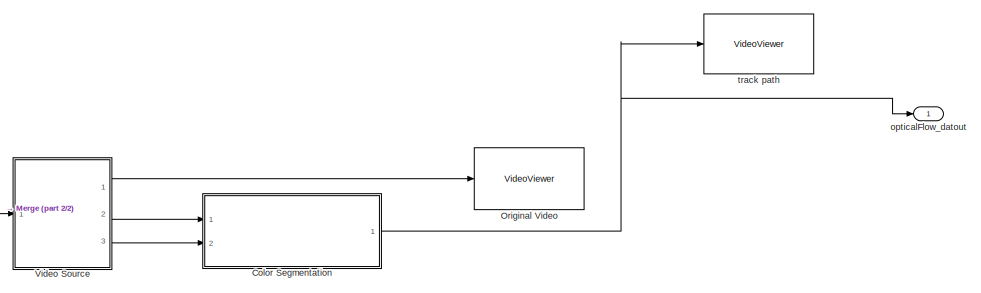
[diagram: root canvas - part 1/2, right side, full height]
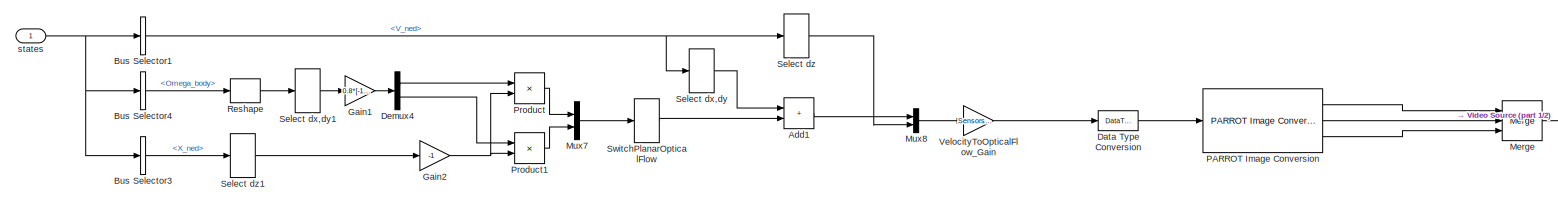
[diagram: root canvas - part 2/2, middle left region]
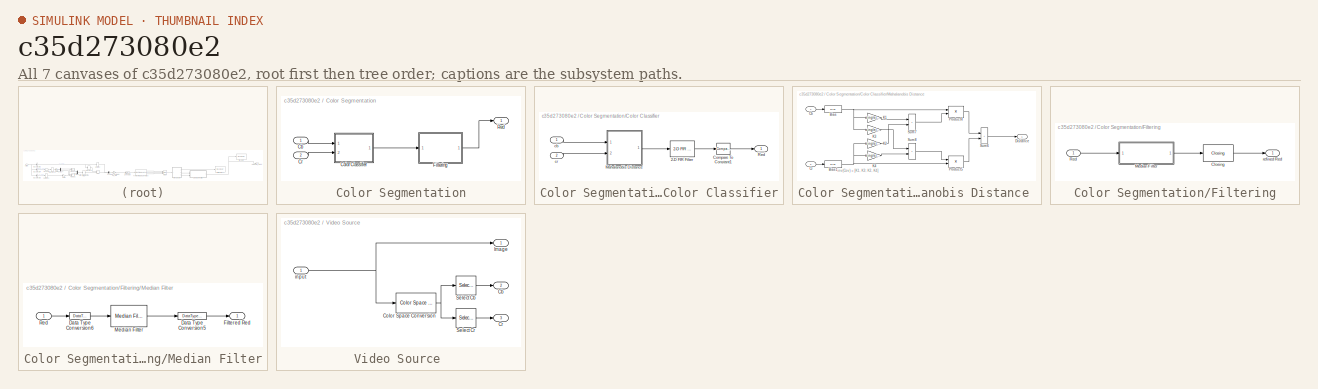
[diagram: thumbnail index - all 7 canvases of the model, root first then tree order]
MODEL slx_c35d273080e2
KIND model
CONFIG AbsTol = auto
CONFIG EnableMultiTasking = off
CONFIG FixedStep = auto
CONFIG MaxStep = auto
CONFIG MinStep = auto
CONFIG RelTol = 1e-3
CONFIG SampleTimeConstraint = Unconstrained
CONFIG Solver = VariableStepAuto
CONFIG SolverName = VariableStepAuto
CONFIG StartTime = 0.0
CONFIG StopTime = 10.0
BLOCK [Sum] Add1
  IconShape = rectangular
  Ports = [2, 1]
BLOCK [BusSelector] Bus Selector1
  OutputSignals = V_ned
  Ports = [1, 1]
BLOCK [BusSelector] Bus Selector3
  OutputSignals = X_ned
  Ports = [1, 1]
BLOCK [BusSelector] Bus Selector4
  OutputSignals = Omega_body
  Ports = [1, 1]
BLOCK [SubSystem] Color Segmentation
  Ports = [2, 1]
  RequestExecContextInheritance = off
BLOCK [Inport] Color Segmentation/Cb
BLOCK [SubSystem] Color Segmentation/Color Classifier
  Ports = [2, 1]
  RequestExecContextInheritance = off
BLOCK [Reference] Color Segmentation/Color Classifier/2-D FIR Filter  REF=visionfilter/2-D FIR Filter
  Ports = [1, 1]
  SourceBlock = visionfilter/2-D FIR Filter
  SourceProductBaseCode = VP
  SourceType = 2-D FIR Filter
BLOCK [Reference] Color Segmentation/Color Classifier/Compare To Constant1  REF=simulink/Logic and Bit
Operations/Compare
To Constant
  Ports = [1, 1]
  SourceBlock = simulink/Logic and Bit\nOperations/Compare\nTo Constant
  SourceProductBaseCode = SL
  SourceType = Compare To Constant
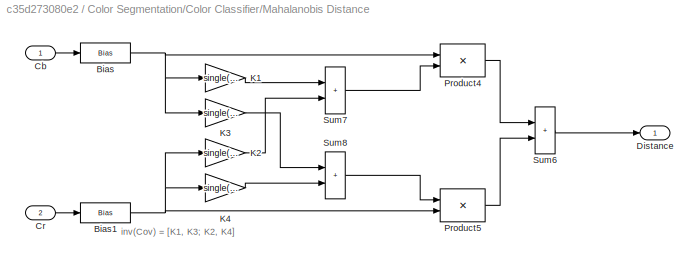
BLOCK [SubSystem] Color Segmentation/Color Classifier/Mahalanobis Distance 
  Ports = [2, 1]
  RequestExecContextInheritance = off
BLOCK [Bias] Color Segmentation/Color Classifier/Mahalanobis Distance /Bias
  Bias = -single(90/255)
  SaturateOnIntegerOverflow = off
BLOCK [Bias] Color Segmentation/Color Classifier/Mahalanobis Distance /Bias1
  Bias = -single(240/255)
  SaturateOnIntegerOverflow = off
BLOCK [Inport] Color Segmentation/Color Classifier/Mahalanobis Distance /Cb
BLOCK [Inport] Color Segmentation/Color Classifier/Mahalanobis Distance /Cr
  Port = 2
BLOCK [Outport] Color Segmentation/Color Classifier/Mahalanobis Distance /Distance
BLOCK [Gain] Color Segmentation/Color Classifier/Mahalanobis Distance /K1
  Gain = single(1.8328501e+03)
  OutDataTypeStr = Inherit: Same as input
  ParamDataTypeStr = Inherit: Same as input
  SaturateOnIntegerOverflow = on
BLOCK [Gain] Color Segmentation/Color Classifier/Mahalanobis Distance /K2
  Gain = single(2.2506719e+03)
  OutDataTypeStr = Inherit: Same as input
  ParamDataTypeStr = Inherit: Same as input
  SaturateOnIntegerOverflow = on
BLOCK [Gain] Color Segmentation/Color Classifier/Mahalanobis Distance /K3
  Gain = single(2.2506719e+03)
  OutDataTypeStr = Inherit: Same as input
  ParamDataTypeStr = Inherit: Same as input
  SaturateOnIntegerOverflow = on
BLOCK [Gain] Color Segmentation/Color Classifier/Mahalanobis Distance /K4
  Gain = single(6.8658257e+03)
  OutDataTypeStr = Inherit: Same as input
  ParamDataTypeStr = Inherit: Same as input
  SaturateOnIntegerOverflow = on
BLOCK [Product] Color Segmentation/Color Classifier/Mahalanobis Distance /Product4
  InputSameDT = on
  OutDataTypeStr = Inherit: Same as first input
  Ports = [2, 1]
  SaturateOnIntegerOverflow = on
BLOCK [Product] Color Segmentation/Color Classifier/Mahalanobis Distance /Product5
  InputSameDT = on
  OutDataTypeStr = Inherit: Same as first input
  Ports = [2, 1]
  SaturateOnIntegerOverflow = on
BLOCK [Sum] Color Segmentation/Color Classifier/Mahalanobis Distance /Sum6
  IconShape = rectangular
  InputSameDT = on
  OutDataTypeStr = Inherit: Same as first input
  Ports = [2, 1]
  SaturateOnIntegerOverflow = on
BLOCK [Sum] Color Segmentation/Color Classifier/Mahalanobis Distance /Sum7
  IconShape = rectangular
  InputSameDT = on
  OutDataTypeStr = Inherit: Same as first input
  Ports = [2, 1]
  SaturateOnIntegerOverflow = on
BLOCK [Sum] Color Segmentation/Color Classifier/Mahalanobis Distance /Sum8
  IconShape = rectangular
  InputSameDT = on
  OutDataTypeStr = Inherit: Same as first input
  Ports = [2, 1]
  SaturateOnIntegerOverflow = on
BLOCK [Outport] Color Segmentation/Color Classifier/Red 
BLOCK [Inport] Color Segmentation/Color Classifier/cb
BLOCK [Inport] Color Segmentation/Color Classifier/cr
  Port = 2
BLOCK [Inport] Color Segmentation/Cr
  Port = 2
BLOCK [SubSystem] Color Segmentation/Filtering
  Ports = [1, 1]
  RequestExecContextInheritance = off
BLOCK [Reference] Color Segmentation/Filtering/Closing  REF=visionmorphops/Closing
  Ports = [1, 1]
  SourceBlock = visionmorphops/Closing
  SourceProductBaseCode = VP
  SourceType = Closing
BLOCK [SubSystem] Color Segmentation/Filtering/Median Filter
  Ports = [1, 1]
  RequestExecContextInheritance = off
BLOCK [DataTypeConversion] Color Segmentation/Filtering/Median Filter/Data Type Conversion5
  OutDataTypeStr = boolean
BLOCK [DataTypeConversion] Color Segmentation/Filtering/Median Filter/Data Type Conversion6
  OutDataTypeStr = single
BLOCK [Outport] Color Segmentation/Filtering/Median Filter/Filtered Red
BLOCK [Reference] Color Segmentation/Filtering/Median Filter/Median Filter  REF=visionanalysis/Median Filter
  Ports = [1, 1]
  SourceBlock = visionanalysis/Median Filter
  SourceProductBaseCode = VP
  SourceType = Median Filter
BLOCK [Inport] Color Segmentation/Filtering/Median Filter/Red
BLOCK [Inport] Color Segmentation/Filtering/Red
BLOCK [Outport] Color Segmentation/Filtering/refined Red
BLOCK [Outport] Color Segmentation/Red
BLOCK [DataTypeConversion] Data Type Conversion
  OutDataTypeStr = single
  RndMeth = Floor
  SaturateOnIntegerOverflow = off
BLOCK [Demux] Demux4
  Outputs = 2
  Ports = [1, 2]
BLOCK [Gain] Gain1
  Gain = 0.8*[-1,1]
BLOCK [Gain] Gain2
  Gain = -1
BLOCK [Merge] Merge
  Inputs = 3
  Ports = [3, 1]
BLOCK [Mux] Mux7
  DisplayOption = bar
  Inputs = 2
  Ports = [2, 1]
BLOCK [Mux] Mux8
  DisplayOption = bar
  Inputs = 2
  Ports = [2, 1]
BLOCK [VideoViewer] Original Video
  FigPos = [685 765 681 682]
  Ports = [1]
  ScopeSpecificationString = vipscopes.VideoViewerScopeCfg('CurrentConfiguration', extmgr.ConfigurationSet(extmgr.Configuration('Core','General UI',true,'ShowPlaybackToolbar',false,'ShowSaveConfigSet',true,'FigureProperties',[],'MessageLogAutoOpenMode','for warn/fail messages','FigureColor',[0.941176470588235 0.941176470588235 0.941176470588235]),extmgr.Configuration('Core','Source UI',true,'PlaybackToolbar',true),extmgr.Conf...<+544ch>
  colormapValue = gray(256)
  trueSizedOnce = on
BLOCK [Reference] PARROT Image Conversion  REF=parrotlib/PARROT Image Conversion
  Ports = [1, 3]
  SourceBlock = parrotlib/PARROT Image Conversion
  SourceProductBaseCode = MINIDRONES
  SourceType = parrot.ImageProcess
  Tag = IP_FORMAT
BLOCK [Product] Product
  Ports = [2, 1]
BLOCK [Product] Product1
  Ports = [2, 1]
BLOCK [Reshape] Reshape
  Ports = [1, 1]
BLOCK [Selector] Select dx,dy
  IndexOptions = Index vector (dialog)
  Indices = [1 2]
  InputPortWidth = 3
  OutputSizes = 1
  Ports = [1, 1]
BLOCK [Selector] Select dx,dy1
  IndexOptions = Index vector (dialog)
  Indices = [1 2]
  InputPortWidth = 3
  OutputSizes = 1
  Ports = [1, 1]
BLOCK [Selector] Select dz
  IndexOptions = Index vector (dialog)
  Indices = 3
  InputPortWidth = 3
  OutputSizes = 1
  Ports = [1, 1]
BLOCK [Selector] Select dz1
  IndexOptions = Index vector (dialog)
  Indices = 3
  InputPortWidth = 3
  OutputSizes = 1
  Ports = [1, 1]
BLOCK [Selector] SwitchPlanarOpticalFlow
  IndexOptions = Index vector (dialog)
  Indices = [2 1]
  InputPortWidth = 2
  OutputSizes = 1
  Ports = [1, 1]
BLOCK [Gain] VelocityToOpticalFlow_Gain
  Gain = Sensors.velocityToOpticalFlowGain
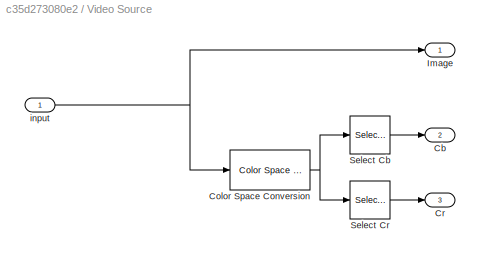
BLOCK [SubSystem] Video Source 
  Ports = [1, 3]
  RequestExecContextInheritance = off
BLOCK [Outport] Video Source /Cb
  Port = 2
BLOCK [Reference] Video Source /Color Space Conversion  REF=visionconversions/Color Space
 Conversion
  Ports = [1, 1]
  SourceBlock = visionconversions/Color Space\n Conversion
  SourceProductBaseCode = VP
  SourceType = Color Space Conversion
BLOCK [Outport] Video Source /Cr
  Port = 3
BLOCK [Outport] Video Source /Image
BLOCK [Selector] Video Source /Select Cb
  IndexOptions = Select all,Select all,Index vector (dialog)
  Indices = [1 3],1,2
  InputPortWidth = 3
  NumberOfDimensions = 3
  OutputSizes = 1,1,1
  Ports = [1, 1]
BLOCK [Selector] Video Source /Select Cr
  IndexOptions = Select all,Select all,Index vector (dialog)
  Indices = [1 3],1,3
  InputPortWidth = 3
  NumberOfDimensions = 3
  OutputSizes = 1,1,1
  Ports = [1, 1]
BLOCK [Inport] Video Source /input 
BLOCK [Outport] opticalFlow_datout
  VectorParamsAs1DForOutWhenUnconnected = off
BLOCK [Inport] states
  NameLocation = top
BLOCK [VideoViewer] track path 
  FigPos = [1 766 683 691]
  Ports = [1]
  ScopeSpecificationString = vipscopes.VideoViewerScopeCfg('CurrentConfiguration', extmgr.ConfigurationSet(extmgr.Configuration('Core','General UI',true,'ShowPlaybackToolbar',false,'ShowSaveConfigSet',true,'FigureProperties',[],'MessageLogAutoOpenMode','for warn/fail messages','FigureColor',[0.941176470588235 0.941176470588235 0.941176470588235]),extmgr.Configuration('Core','Source UI',true,'PlaybackToolbar',true),extmgr.Conf...<+542ch>
  colormapValue = gray(256)
  trueSizedOnce = on
ANNOTATION Color Segmentation/Color Classifier/Mahalanobis Distance : inv(Cov) = [K1, K3; K2, K4]
LINE Add1:1 -> Mux8:1
NET Bus Selector1:1 -> Select dx,dy:1, Select dz:1
LINE Bus Selector3:1 -> Select dz1:1
LINE Bus Selector4:1 -> Reshape:1
LINE Color Segmentation/Cb:1 -> Color Segmentation/Color Classifier:1
LINE Color Segmentation/Color Classifier/2-D FIR Filter:1 -> Color Segmentation/Color Classifier/Compare To Constant1:1
LINE Color Segmentation/Color Classifier/Compare To Constant1:1 -> Color Segmentation/Color Classifier/Red :1
NET Color Segmentation/Color Classifier/Mahalanobis Distance /Bias1:1 -> Color Segmentation/Color Classifier/Mahalanobis Distance /K2:1, Color Segmentation/Color Classifier/Mahalanobis Distance /K4:1, Color Segmentation/Color Classifier/Mahalanobis Distance /Product5:2
NET Color Segmentation/Color Classifier/Mahalanobis Distance /Bias:1 -> Color Segmentation/Color Classifier/Mahalanobis Distance /K1:1, Color Segmentation/Color Classifier/Mahalanobis Distance /K3:1, Color Segmentation/Color Classifier/Mahalanobis Distance /Product4:1
LINE Color Segmentation/Color Classifier/Mahalanobis Distance /Cb:1 -> Color Segmentation/Color Classifier/Mahalanobis Distance /Bias:1
LINE Color Segmentation/Color Classifier/Mahalanobis Distance /Cr:1 -> Color Segmentation/Color Classifier/Mahalanobis Distance /Bias1:1
LINE Color Segmentation/Color Classifier/Mahalanobis Distance /K1:1 -> Color Segmentation/Color Classifier/Mahalanobis Distance /Sum7:1
LINE Color Segmentation/Color Classifier/Mahalanobis Distance /K2:1 -> Color Segmentation/Color Classifier/Mahalanobis Distance /Sum7:2
LINE Color Segmentation/Color Classifier/Mahalanobis Distance /K3:1 -> Color Segmentation/Color Classifier/Mahalanobis Distance /Sum8:1
LINE Color Segmentation/Color Classifier/Mahalanobis Distance /K4:1 -> Color Segmentation/Color Classifier/Mahalanobis Distance /Sum8:2
LINE Color Segmentation/Color Classifier/Mahalanobis Distance /Product4:1 -> Color Segmentation/Color Classifier/Mahalanobis Distance /Sum6:1
LINE Color Segmentation/Color Classifier/Mahalanobis Distance /Product5:1 -> Color Segmentation/Color Classifier/Mahalanobis Distance /Sum6:2
LINE Color Segmentation/Color Classifier/Mahalanobis Distance /Sum6:1 -> Color Segmentation/Color Classifier/Mahalanobis Distance /Distance:1
LINE Color Segmentation/Color Classifier/Mahalanobis Distance /Sum7:1 -> Color Segmentation/Color Classifier/Mahalanobis Distance /Product4:2
LINE Color Segmentation/Color Classifier/Mahalanobis Distance /Sum8:1 -> Color Segmentation/Color Classifier/Mahalanobis Distance /Product5:1
LINE Color Segmentation/Color Classifier/Mahalanobis Distance :1 -> Color Segmentation/Color Classifier/2-D FIR Filter:1
LINE Color Segmentation/Color Classifier/cb:1 -> Color Segmentation/Color Classifier/Mahalanobis Distance :1
LINE Color Segmentation/Color Classifier/cr:1 -> Color Segmentation/Color Classifier/Mahalanobis Distance :2
LINE Color Segmentation/Color Classifier:1 -> Color Segmentation/Filtering:1
LINE Color Segmentation/Cr:1 -> Color Segmentation/Color Classifier:2
LINE Color Segmentation/Filtering/Closing:1 -> Color Segmentation/Filtering/refined Red:1
LINE Color Segmentation/Filtering/Median Filter/Data Type Conversion5:1 -> Color Segmentation/Filtering/Median Filter/Filtered Red:1
LINE Color Segmentation/Filtering/Median Filter/Data Type Conversion6:1 -> Color Segmentation/Filtering/Median Filter/Median Filter:1
LINE Color Segmentation/Filtering/Median Filter/Median Filter:1 -> Color Segmentation/Filtering/Median Filter/Data Type Conversion5:1
LINE Color Segmentation/Filtering/Median Filter/Red:1 -> Color Segmentation/Filtering/Median Filter/Data Type Conversion6:1
LINE Color Segmentation/Filtering/Median Filter:1 -> Color Segmentation/Filtering/Closing:1
LINE Color Segmentation/Filtering/Red:1 -> Color Segmentation/Filtering/Median Filter:1
LINE Color Segmentation/Filtering:1 -> Color Segmentation/Red:1
NET Color Segmentation:1 -> opticalFlow_datout:1, track path :1
LINE Data Type Conversion:1 -> PARROT Image Conversion:1
LINE Demux4:1 -> Product:1
LINE Demux4:2 -> Product1:1
LINE Gain1:1 -> Demux4:1
NET Gain2:1 -> Product1:2, Product:2
LINE Merge:1 -> Video Source :1
LINE Mux7:1 -> SwitchPlanarOpticalFlow:1
LINE Mux8:1 -> VelocityToOpticalFlow_Gain:1
LINE PARROT Image Conversion:1 -> Merge:1
LINE PARROT Image Conversion:2 -> Merge:2
LINE PARROT Image Conversion:3 -> Merge:3
LINE Product1:1 -> Mux7:2
LINE Product:1 -> Mux7:1
LINE Reshape:1 -> Select dx,dy1:1
LINE Select dx,dy1:1 -> Gain1:1
LINE Select dx,dy:1 -> Add1:1
LINE Select dz1:1 -> Gain2:1
LINE Select dz:1 -> Mux8:2
LINE SwitchPlanarOpticalFlow:1 -> Add1:2
LINE VelocityToOpticalFlow_Gain:1 -> Data Type Conversion:1
NET Video Source /Color Space Conversion:1 -> Video Source /Select Cb:1, Video Source /Select Cr:1
LINE Video Source /Select Cb:1 -> Video Source /Cb:1
LINE Video Source /Select Cr:1 -> Video Source /Cr:1
NET Video Source /input :1 -> Video Source /Color Space Conversion:1, Video Source /Image:1
LINE Video Source :1 -> Original Video:1
LINE Video Source :2 -> Color Segmentation:1
LINE Video Source :3 -> Color Segmentation:2
NET states:1 -> Bus Selector1:1, Bus Selector3:1, Bus Selector4:1
note: NET lines group one-source signal fan-out (src -> all destinations, sorted); 1:1 wires keep LINE
